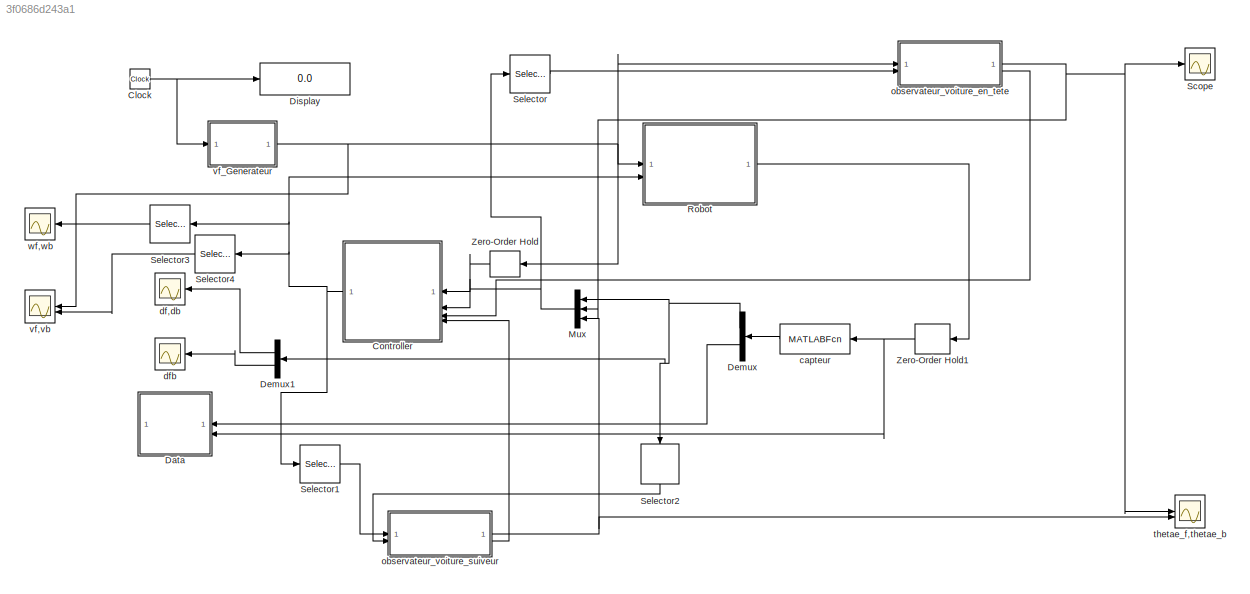
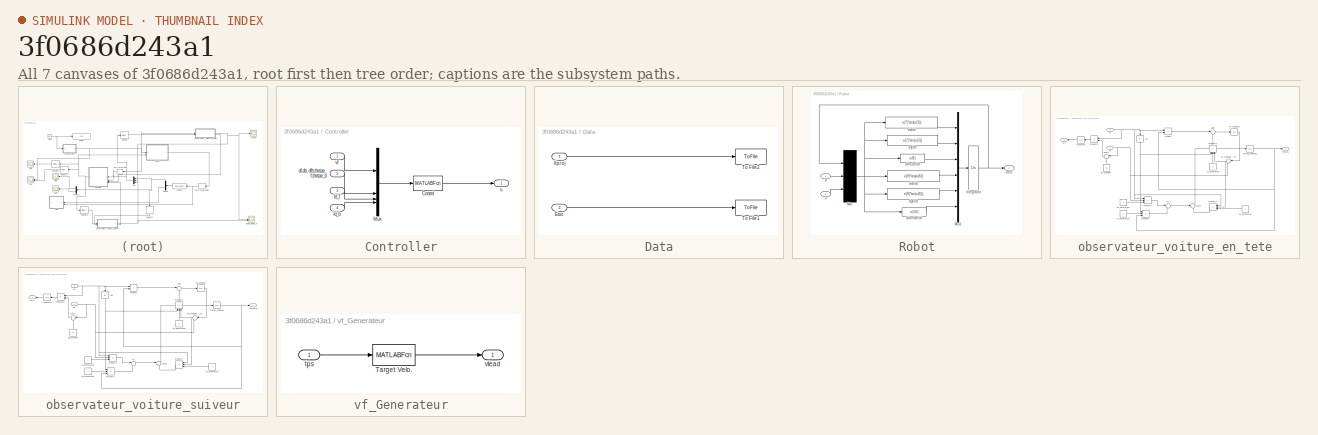
[diagram: thumbnail index - all 7 canvases of the model, root first then tree order]
MODEL mdl_3f0686d243a1
KIND model
CONFIG AbsTol = 1e-5
CONFIG EnableMultiTasking = on
CONFIG FixedStep = auto
CONFIG MaxStep = auto
CONFIG MinStep = auto
CONFIG RelTol = 1e-5
CONFIG SampleTimeConstraint = Unconstrained
CONFIG SolverName = ode45
CONFIG StartTime = 0.0
CONFIG StopTime = 30
BLOCK [Clock] Clock
BLOCK [SubSystem] Controller
BLOCK [MATLABFcn] Controller/Control
  MATLABFcn = control_Q3(u)
  OutputDimensions = 3
BLOCK [Inport] Controller/Id_b
  Port = 4
BLOCK [Inport] Controller/Id_f
  Port = 3
BLOCK [Mux] Controller/Mux
  DisplayOption = bar
BLOCK [Inport] Controller/df,db, dfb,thetae_f,thetae_b
  Port = 2
BLOCK [Outport] Controller/u
  VectorParamsAs1DForOutWhenUnconnected = off
BLOCK [Inport] Controller/vf
BLOCK [SubSystem] Data
BLOCK [Inport] Data/Etat
  Port = 2
BLOCK [ToFile] Data/To File1
  Filename = cart.mat
  SampleTime = stomat
BLOCK [ToFile] Data/To File2
  Filename = xproj.mat
  SampleTime = stomat
BLOCK [Inport] Data/Xproj
BLOCK [Demux] Demux
  Outputs = [3;4]
BLOCK [Demux] Demux1
  Outputs = [2;1]
BLOCK [Display] Display
  Decimation = 1
BLOCK [Mux] Mux
  DisplayOption = bar
  Inputs = 3
  NameLocation = top
BLOCK [SubSystem] Robot
BLOCK [Integrator] Robot/Integrator
  InitialCondition = init
BLOCK [Mux] Robot/Mux
  Inputs = [6 1 3]
BLOCK [Mux] Robot/Mux1
  DisplayOption = bar
  Inputs = 6
BLOCK [Outport] Robot/Out1
  VectorParamsAs1DForOutWhenUnconnected = off
BLOCK [Fcn] Robot/dthetab//dt
  Expr = u(10)
BLOCK [Fcn] Robot/dthetaf//dt
  Expr = u(8)
BLOCK [Fcn] Robot/dxb//dt
  Expr = u(9)*cos(u(6))
BLOCK [Fcn] Robot/dxf//dt
  Expr = u(7)*cos(u(3))
BLOCK [Fcn] Robot/dyb//dt
  Expr = u(9)*sin(u(6))
BLOCK [Fcn] Robot/dyf//dt
  Expr = u(7)*sin(u(3))
BLOCK [Inport] Robot/u
  Port = 2
BLOCK [Inport] Robot/vf
BLOCK [Scope] Scope
  Floating = off
  NumInputPorts = 1
  ScopeSpecificationString = Simulink.scopes.TimeScopeBlockCfg('CurrentConfiguration', extmgr.ConfigurationSet(extmgr.Configuration('Core','General UI',true),extmgr.Configuration('Core','Source UI',true),extmgr.Configuration('Sources','WiredSimulink',true,'DataLoggingVariableName','ScopeData1'),extmgr.Configuration('Visuals','Time Domain',true,'SerializedDisplays',{struct('MinYLimReal','-0.46766','MaxYLimReal','0.2048','YLabe...<+1414ch>
BLOCK [Selector] Selector
  IndexOptions = Index vector (dialog)
  Indices = [1 ]
  InputPortWidth = 5
  OutputSizes = 1
BLOCK [Selector] Selector1
  IndexOptions = Index vector (dialog)
  Indices = [2]
  InputPortWidth = 3
  OutputSizes = 1
BLOCK [Selector] Selector2
  IndexOptions = Index vector (dialog)
  Indices = [2]
  InputPortWidth = 3
  NameLocation = left
  OutputSizes = 1
BLOCK [Selector] Selector3
  IndexOptions = Index vector (dialog)
  Indices = [1 3]
  InputPortWidth = 3
  NameLocation = top
  OutputSizes = 1
BLOCK [Selector] Selector4
  IndexOptions = Index vector (dialog)
  Indices = [2]
  InputPortWidth = 3
  NameLocation = top
  OutputSizes = 1
BLOCK [ZeroOrderHold] Zero-Order Hold
  SampleTime = 0.01
BLOCK [ZeroOrderHold] Zero-Order Hold1
  SampleTime = 0.01
BLOCK [MATLABFcn] capteur
  MATLABFcn = capteur2_3
  OutputDimensions = 7
BLOCK [Scope] df,db
  Floating = off
  NumInputPorts = 1
  ScopeSpecificationString = Simulink.scopes.TimeScopeBlockCfg('CurrentConfiguration', extmgr.ConfigurationSet(extmgr.Configuration('Core','General UI',true),extmgr.Configuration('Core','Source UI',true),extmgr.Configuration('Sources','WiredSimulink',true,'DataLoggingSaveFormat','StructureWithTime','DataLoggingLimitDataPoints',true,'DataLoggingDecimation','1','DataLoggingDecimateData',true,'DataLoggingVariableName','ScopeData...<+1739ch>
BLOCK [Scope] dfb
  Floating = off
  NumInputPorts = 1
  ScopeSpecificationString = Simulink.scopes.TimeScopeBlockCfg('CurrentConfiguration', extmgr.ConfigurationSet(extmgr.Configuration('Core','General UI',true),extmgr.Configuration('Core','Source UI',true),extmgr.Configuration('Sources','WiredSimulink',true,'DataLoggingSaveFormat','StructureWithTime','DataLoggingLimitDataPoints',true,'DataLoggingDecimation','1','DataLoggingDecimateData',true,'DataLoggingVariableName','ScopeData...<+1724ch>
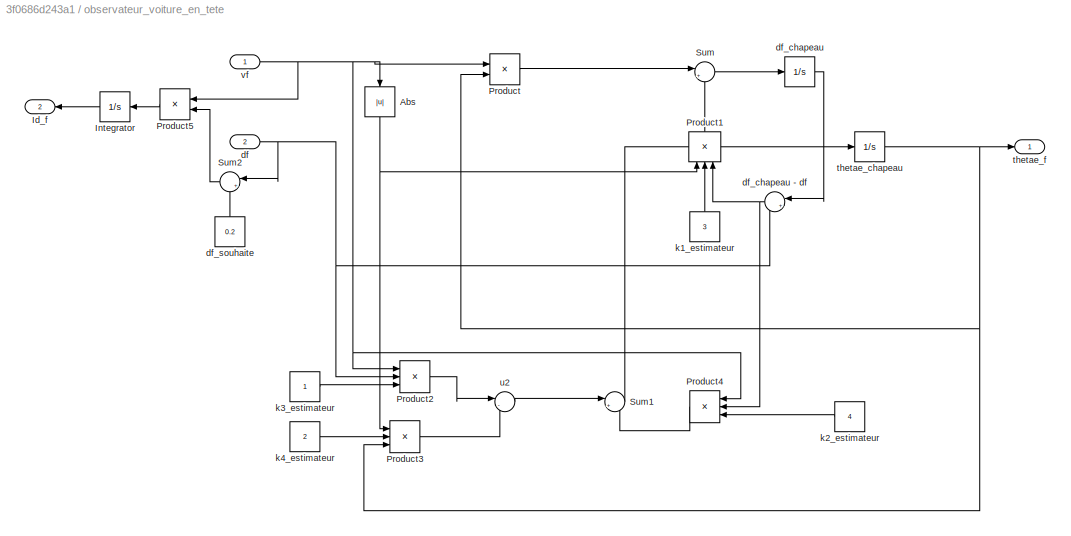
BLOCK [SubSystem] observateur_voiture_en_tete
BLOCK [Abs] observateur_voiture_en_tete/Abs
  NameLocation = left
  SaturateOnIntegerOverflow = off
BLOCK [Outport] observateur_voiture_en_tete/Id_f
  NameLocation = top
  Port = 2
BLOCK [Integrator] observateur_voiture_en_tete/Integrator
  NameLocation = top
BLOCK [Product] observateur_voiture_en_tete/Product
BLOCK [Product] observateur_voiture_en_tete/Product1
  Inputs = 3
  NameLocation = right
BLOCK [Product] observateur_voiture_en_tete/Product2
  Inputs = 3
BLOCK [Product] observateur_voiture_en_tete/Product3
  Inputs = 3
BLOCK [Product] observateur_voiture_en_tete/Product4
  Inputs = 3
  NameLocation = top
BLOCK [Product] observateur_voiture_en_tete/Product5
  NameLocation = top
BLOCK [Sum] observateur_voiture_en_tete/Sum
  Inputs = |+-
BLOCK [Sum] observateur_voiture_en_tete/Sum1
  Inputs = |+-
BLOCK [Sum] observateur_voiture_en_tete/Sum2
  Inputs = |+-
  NameLocation = top
BLOCK [Inport] observateur_voiture_en_tete/df
  Port = 2
BLOCK [Integrator] observateur_voiture_en_tete/df_chapeau
BLOCK [Sum] observateur_voiture_en_tete/df_chapeau - df
  Inputs = |+-
  NameLocation = top
BLOCK [Constant] observateur_voiture_en_tete/df_souhaite
  NameLocation = right
  Value = 0.2
BLOCK [Constant] observateur_voiture_en_tete/k1_estimateur
  NameLocation = right
  Value = 3
BLOCK [Constant] observateur_voiture_en_tete/k2_estimateur
  NameLocation = top
  Value = 4
BLOCK [Constant] observateur_voiture_en_tete/k3_estimateur
BLOCK [Constant] observateur_voiture_en_tete/k4_estimateur 
  Value = 2
BLOCK [Integrator] observateur_voiture_en_tete/thetae_chapeau
BLOCK [Outport] observateur_voiture_en_tete/thetae_f
BLOCK [Sum] observateur_voiture_en_tete/u2
  Inputs = |--
BLOCK [Inport] observateur_voiture_en_tete/vf
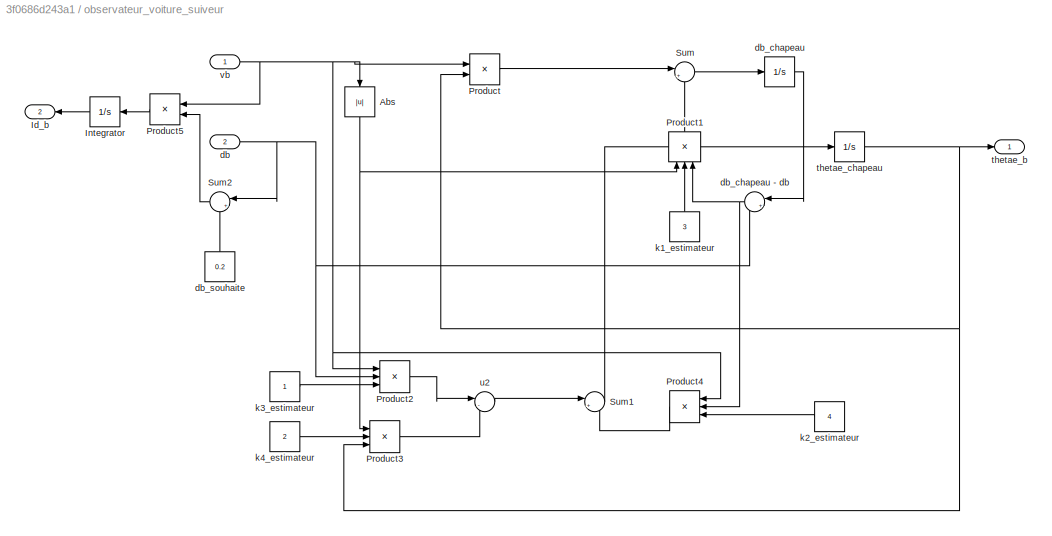
BLOCK [SubSystem] observateur_voiture_suiveur
BLOCK [Abs] observateur_voiture_suiveur/Abs
  NameLocation = left
  SaturateOnIntegerOverflow = off
BLOCK [Outport] observateur_voiture_suiveur/Id_b
  NameLocation = top
  Port = 2
BLOCK [Integrator] observateur_voiture_suiveur/Integrator
  NameLocation = top
BLOCK [Product] observateur_voiture_suiveur/Product
BLOCK [Product] observateur_voiture_suiveur/Product1
  Inputs = 3
  NameLocation = right
BLOCK [Product] observateur_voiture_suiveur/Product2
  Inputs = 3
BLOCK [Product] observateur_voiture_suiveur/Product3
  Inputs = 3
BLOCK [Product] observateur_voiture_suiveur/Product4
  Inputs = 3
  NameLocation = top
BLOCK [Product] observateur_voiture_suiveur/Product5
  NameLocation = top
BLOCK [Sum] observateur_voiture_suiveur/Sum
  Inputs = |+-
BLOCK [Sum] observateur_voiture_suiveur/Sum1
  Inputs = |+-
BLOCK [Sum] observateur_voiture_suiveur/Sum2
  Inputs = |+-
  NameLocation = top
BLOCK [Inport] observateur_voiture_suiveur/db
  Port = 2
BLOCK [Integrator] observateur_voiture_suiveur/db_chapeau
BLOCK [Sum] observateur_voiture_suiveur/db_chapeau - db
  Inputs = |+-
  NameLocation = top
BLOCK [Constant] observateur_voiture_suiveur/db_souhaite
  NameLocation = right
  Value = 0.2
BLOCK [Constant] observateur_voiture_suiveur/k1_estimateur
  NameLocation = right
  Value = 3
BLOCK [Constant] observateur_voiture_suiveur/k2_estimateur
  NameLocation = top
  Value = 4
BLOCK [Constant] observateur_voiture_suiveur/k3_estimateur
BLOCK [Constant] observateur_voiture_suiveur/k4_estimateur 
  Value = 2
BLOCK [Outport] observateur_voiture_suiveur/thetae_b
BLOCK [Integrator] observateur_voiture_suiveur/thetae_chapeau
BLOCK [Sum] observateur_voiture_suiveur/u2
  Inputs = |--
BLOCK [Inport] observateur_voiture_suiveur/vb
BLOCK [Scope] thetae_f,thetae_b
  Floating = off
  NumInputPorts = 2
  ScopeSpecificationString = Simulink.scopes.TimeScopeBlockCfg('CurrentConfiguration', extmgr.ConfigurationSet(extmgr.Configuration('Core','General UI',true),extmgr.Configuration('Core','Source UI',true),extmgr.Configuration('Sources','WiredSimulink',true,'DataLoggingVariableName','ScopeData1'),extmgr.Configuration('Visuals','Time Domain',true,'SerializedDisplays',{struct('MinYLimReal','-0.83916','MaxYLimReal','0.77936','YLab...<+1449ch>
BLOCK [Scope] vf,vb
  Floating = off
  NameLocation = top
  NumInputPorts = 2
  ScopeSpecificationString = Simulink.scopes.TimeScopeBlockCfg('CurrentConfiguration', extmgr.ConfigurationSet(extmgr.Configuration('Core','General UI',true),extmgr.Configuration('Core','Source UI',true),extmgr.Configuration('Sources','WiredSimulink',true,'DataLoggingVariableName','ScopeData2'),extmgr.Configuration('Visuals','Time Domain',true,'SerializedDisplays',{struct('MinYLimReal','-8.93382','MaxYLimReal','8.77307','YLab...<+1413ch>
BLOCK [SubSystem] vf_Generateur
BLOCK [MATLABFcn] vf_Generateur/Target Velo.
  MATLABFcn = vr(u,choix_traj)
  OutputDimensions = 1
BLOCK [Inport] vf_Generateur/tps
BLOCK [Outport] vf_Generateur/vlead 
  VectorParamsAs1DForOutWhenUnconnected = off
BLOCK [Scope] wf,wb
  Floating = off
  NumInputPorts = 1
  ScopeSpecificationString = Simulink.scopes.TimeScopeBlockCfg('CurrentConfiguration', extmgr.ConfigurationSet(extmgr.Configuration('Core','General UI',true),extmgr.Configuration('Core','Source UI',true),extmgr.Configuration('Sources','WiredSimulink',true,'DataLoggingSaveFormat','StructureWithTime','DataLoggingDecimation','1','DataLoggingDecimateData',true),extmgr.Configuration('Visuals','Time Domain',true,'SerializedDisplays...<+1668ch>
NET Clock:1 -> Display:1, vf_Generateur:1
LINE Controller/Control:1 -> Controller/u:1
LINE Controller/Id_b:1 -> Controller/Mux:4
LINE Controller/Id_f:1 -> Controller/Mux:3
LINE Controller/Mux:1 -> Controller/Control:1
LINE Controller/df,db, dfb,thetae_f,thetae_b:1 -> Controller/Mux:2
LINE Controller/vf:1 -> Controller/Mux:1
NET Controller:1 -> Robot:2, Selector1:1, Selector3:1, Selector4:1
LINE Data/Etat:1 -> Data/To File1:1
LINE Data/Xproj:1 -> Data/To File2:1
LINE Demux1:1 -> df,db:1
LINE Demux1:2 -> dfb:1
NET Demux:1 -> Demux1:1, Mux:1, Selector2:1
LINE Demux:2 -> Data:1
NET Mux:1 -> Controller:2, Selector:1
NET Robot/Integrator:1 -> Robot/Mux:1, Robot/Out1:1
LINE Robot/Mux1:1 -> Robot/Integrator:1
NET Robot/Mux:1 -> Robot/dthetab//dt:1, Robot/dthetaf//dt:1, Robot/dxb//dt:1, Robot/dxf//dt:1, Robot/dyb//dt:1, Robot/dyf//dt:1
LINE Robot/dthetab//dt:1 -> Robot/Mux1:6
LINE Robot/dthetaf//dt:1 -> Robot/Mux1:3
LINE Robot/dxb//dt:1 -> Robot/Mux1:4
LINE Robot/dxf//dt:1 -> Robot/Mux1:1
LINE Robot/dyb//dt:1 -> Robot/Mux1:5
LINE Robot/dyf//dt:1 -> Robot/Mux1:2
LINE Robot/u:1 -> Robot/Mux:3
LINE Robot/vf:1 -> Robot/Mux:2
LINE Robot:1 -> Zero-Order Hold1:1
LINE Selector1:1 -> observateur_voiture_suiveur:1
LINE Selector2:1 -> observateur_voiture_suiveur:2
LINE Selector3:1 -> wf,wb:1
LINE Selector4:1 -> vf,vb:2
LINE Selector:1 -> observateur_voiture_en_tete:2
NET Zero-Order Hold1:1 -> Data:2, capteur:1
LINE Zero-Order Hold:1 -> Controller:1
LINE capteur:1 -> Demux:1
NET observateur_voiture_en_tete/Abs:1 -> observateur_voiture_en_tete/Product1:1, observateur_voiture_en_tete/Product3:1
LINE observateur_voiture_en_tete/Integrator:1 -> observateur_voiture_en_tete/Id_f:1
LINE observateur_voiture_en_tete/Product1:1 -> observateur_voiture_en_tete/Sum:2
LINE observateur_voiture_en_tete/Product2:1 -> observateur_voiture_en_tete/u2:1
LINE observateur_voiture_en_tete/Product3:1 -> observateur_voiture_en_tete/u2:2
LINE observateur_voiture_en_tete/Product4:1 -> observateur_voiture_en_tete/Sum1:2
LINE observateur_voiture_en_tete/Product5:1 -> observateur_voiture_en_tete/Integrator:1
LINE observateur_voiture_en_tete/Product:1 -> observateur_voiture_en_tete/Sum:1
LINE observateur_voiture_en_tete/Sum1:1 -> observateur_voiture_en_tete/thetae_chapeau:1
LINE observateur_voiture_en_tete/Sum2:1 -> observateur_voiture_en_tete/Product5:2
LINE observateur_voiture_en_tete/Sum:1 -> observateur_voiture_en_tete/df_chapeau:1
NET observateur_voiture_en_tete/df:1 -> observateur_voiture_en_tete/Product2:2, observateur_voiture_en_tete/Sum2:1, observateur_voiture_en_tete/df_chapeau - df:2
NET observateur_voiture_en_tete/df_chapeau - df:1 -> observateur_voiture_en_tete/Product1:3, observateur_voiture_en_tete/Product4:2
LINE observateur_voiture_en_tete/df_chapeau:1 -> observateur_voiture_en_tete/df_chapeau - df:1
LINE observateur_voiture_en_tete/df_souhaite:1 -> observateur_voiture_en_tete/Sum2:2
LINE observateur_voiture_en_tete/k1_estimateur:1 -> observateur_voiture_en_tete/Product1:2
LINE observateur_voiture_en_tete/k2_estimateur:1 -> observateur_voiture_en_tete/Product4:3
LINE observateur_voiture_en_tete/k3_estimateur:1 -> observateur_voiture_en_tete/Product2:3
LINE observateur_voiture_en_tete/k4_estimateur :1 -> observateur_voiture_en_tete/Product3:2
NET observateur_voiture_en_tete/thetae_chapeau:1 -> observateur_voiture_en_tete/Product3:3, observateur_voiture_en_tete/Product:2, observateur_voiture_en_tete/thetae_f:1
LINE observateur_voiture_en_tete/u2:1 -> observateur_voiture_en_tete/Sum1:1
NET observateur_voiture_en_tete/vf:1 -> observateur_voiture_en_tete/Abs:1, observateur_voiture_en_tete/Product2:1, observateur_voiture_en_tete/Product4:1, observateur_voiture_en_tete/Product5:1, observateur_voiture_en_tete/Product:1
NET observateur_voiture_en_tete:1 -> Mux:2, Scope:1, thetae_f,thetae_b:1
LINE observateur_voiture_en_tete:2 -> Controller:3
NET observateur_voiture_suiveur/Abs:1 -> observateur_voiture_suiveur/Product1:1, observateur_voiture_suiveur/Product3:1
LINE observateur_voiture_suiveur/Integrator:1 -> observateur_voiture_suiveur/Id_b:1
LINE observateur_voiture_suiveur/Product1:1 -> observateur_voiture_suiveur/Sum:2
LINE observateur_voiture_suiveur/Product2:1 -> observateur_voiture_suiveur/u2:1
LINE observateur_voiture_suiveur/Product3:1 -> observateur_voiture_suiveur/u2:2
LINE observateur_voiture_suiveur/Product4:1 -> observateur_voiture_suiveur/Sum1:2
LINE observateur_voiture_suiveur/Product5:1 -> observateur_voiture_suiveur/Integrator:1
LINE observateur_voiture_suiveur/Product:1 -> observateur_voiture_suiveur/Sum:1
LINE observateur_voiture_suiveur/Sum1:1 -> observateur_voiture_suiveur/thetae_chapeau:1
LINE observateur_voiture_suiveur/Sum2:1 -> observateur_voiture_suiveur/Product5:2
LINE observateur_voiture_suiveur/Sum:1 -> observateur_voiture_suiveur/db_chapeau:1
NET observateur_voiture_suiveur/db:1 -> observateur_voiture_suiveur/Product2:2, observateur_voiture_suiveur/Sum2:1, observateur_voiture_suiveur/db_chapeau - db:2
NET observateur_voiture_suiveur/db_chapeau - db:1 -> observateur_voiture_suiveur/Product1:3, observateur_voiture_suiveur/Product4:2
LINE observateur_voiture_suiveur/db_chapeau:1 -> observateur_voiture_suiveur/db_chapeau - db:1
LINE observateur_voiture_suiveur/db_souhaite:1 -> observateur_voiture_suiveur/Sum2:2
LINE observateur_voiture_suiveur/k1_estimateur:1 -> observateur_voiture_suiveur/Product1:2
LINE observateur_voiture_suiveur/k2_estimateur:1 -> observateur_voiture_suiveur/Product4:3
LINE observateur_voiture_suiveur/k3_estimateur:1 -> observateur_voiture_suiveur/Product2:3
LINE observateur_voiture_suiveur/k4_estimateur :1 -> observateur_voiture_suiveur/Product3:2
NET observateur_voiture_suiveur/thetae_chapeau:1 -> observateur_voiture_suiveur/Product3:3, observateur_voiture_suiveur/Product:2, observateur_voiture_suiveur/thetae_b:1
LINE observateur_voiture_suiveur/u2:1 -> observateur_voiture_suiveur/Sum1:1
NET observateur_voiture_suiveur/vb:1 -> observateur_voiture_suiveur/Abs:1, observateur_voiture_suiveur/Product2:1, observateur_voiture_suiveur/Product4:1, observateur_voiture_suiveur/Product5:1, observateur_voiture_suiveur/Product:1
NET observateur_voiture_suiveur:1 -> Mux:3, thetae_f,thetae_b:2
LINE observateur_voiture_suiveur:2 -> Controller:4
LINE vf_Generateur/Target Velo.:1 -> vf_Generateur/vlead :1
LINE vf_Generateur/tps:1 -> vf_Generateur/Target Velo.:1
NET vf_Generateur:1 -> Robot:1, Zero-Order Hold:1, observateur_voiture_en_tete:1, vf,vb:1
note: NET lines group one-source signal fan-out (src -> all destinations, sorted); 1:1 wires keep LINE
